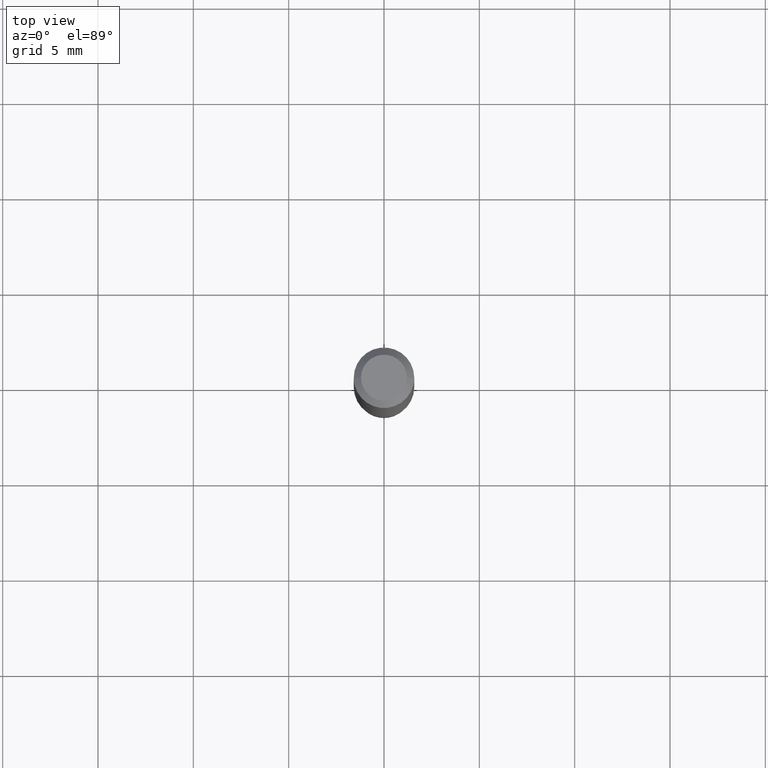
[diagram: clean part render]
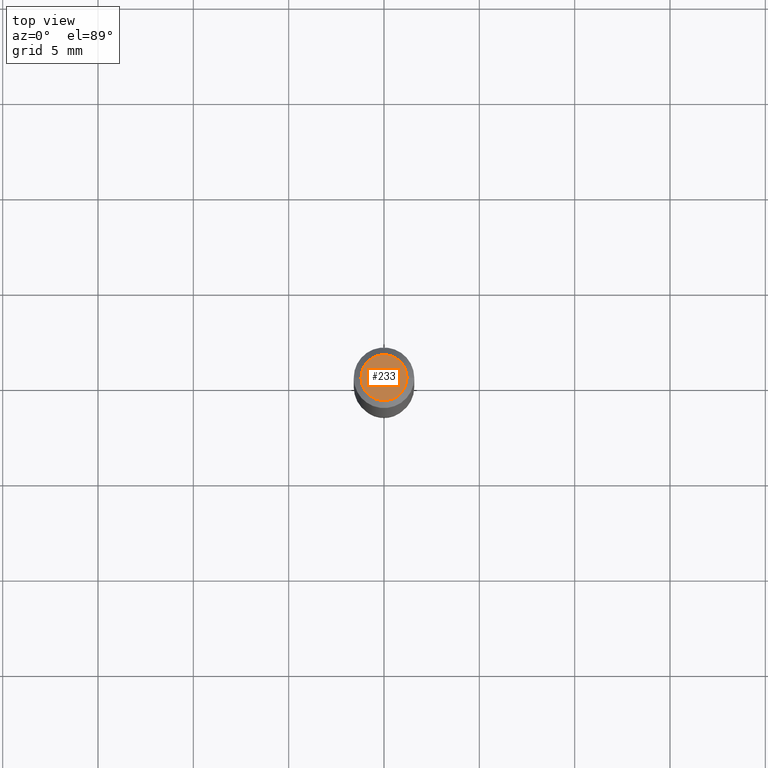
[diagram: same view with one face highlighted and labeled with its STEP entity id]
A machine part, top view. The second image highlights one B-rep face of the part: STEP entity #233.
In plain terms, the highlighted planar face has unit normal (0, -0, -1).
Its self-contained STEP definition (entity closure, byte-faithful):
#18 = CARTESIAN_POINT ( 'NONE',  ( -6.680649051745406845E-45, 9.538196290434862081E-31, 2.731847993664263218E-16 ) ) ;
#20 = DIRECTION ( 'NONE',  ( 1.000000000000000000, -6.982962677686266711E-15, 4.852736867747365086E-29 ) ) ;
#32 = DIRECTION ( 'NONE',  ( 2.438088387897960049E-29, -3.491481338843145188E-15, -1.000000000000000000 ) ) ;
#53 = AXIS2_PLACEMENT_3D ( 'NONE', #281, #444, #314 ) ;
#56 = ORIENTED_EDGE ( 'NONE', *, *, #93, .T. ) ;
#71 = CARTESIAN_POINT ( 'NONE',  ( 3.316907271900976589E-16, 0.04750000000000000749, -2.925296391183627249E-17 ) ) ;
#85 = EDGE_LOOP ( 'NONE', ( #136, #56 ) ) ;
#86 = AXIS2_PLACEMENT_3D ( 'NONE', #18, #391, #20 ) ;
#93 = EDGE_CURVE ( 'NONE', #129, #237, #453, .T. ) ;
#129 = VERTEX_POINT ( 'NONE', #517 ) ;
#136 = ORIENTED_EDGE ( 'NONE', *, *, #153, .T. ) ;
#153 = EDGE_CURVE ( 'NONE', #237, #129, #452, .T. ) ;
#195 = CARTESIAN_POINT ( 'NONE',  ( -0.04750000000000000749, 3.578768372314221353E-16, 2.731847993664239060E-16 ) ) ;
#233 = ADVANCED_FACE ( 'NONE', ( #363 ), #321, .F. ) ;
#237 = VERTEX_POINT ( 'NONE', #195 ) ;
#281 = CARTESIAN_POINT ( 'NONE',  ( -6.680649051745406845E-45, 9.538196290434862081E-31, 2.731847993664263218E-16 ) ) ;
#314 = DIRECTION ( 'NONE',  ( 1.000000000000000000, -6.982962677686266711E-15, 4.852736867747365086E-29 ) ) ;
#321 = PLANE ( 'NONE',  #474 ) ;
#350 = DIRECTION ( 'NONE',  ( -1.000000000000000000, 6.982962677686265922E-15, -4.876176775795935793E-29 ) ) ;
#363 = FACE_OUTER_BOUND ( 'NONE', #85, .T. ) ;
#391 = DIRECTION ( 'NONE',  ( -2.445468806185136597E-29, 3.491481338843145583E-15, 1.000000000000000000 ) ) ;
#444 = DIRECTION ( 'NONE',  ( -2.445468806185136597E-29, 3.491481338843145583E-15, 1.000000000000000000 ) ) ;
#452 = CIRCLE ( 'NONE', #53, 0.04750000000000000749 ) ;
#453 = CIRCLE ( 'NONE', #86, 0.04750000000000000749 ) ;
#474 = AXIS2_PLACEMENT_3D ( 'NONE', #71, #32, #350 ) ;
#517 = CARTESIAN_POINT ( 'NONE',  ( 0.04750000000000000749, -4.035134999187568762E-16, 2.731847993664288856E-16 ) ) ;